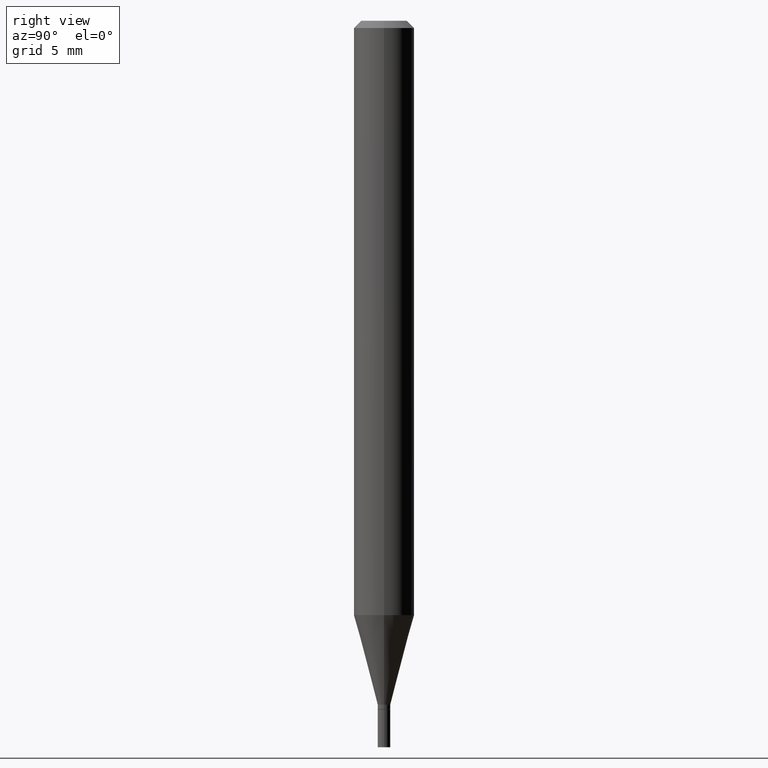
[diagram: clean part render]
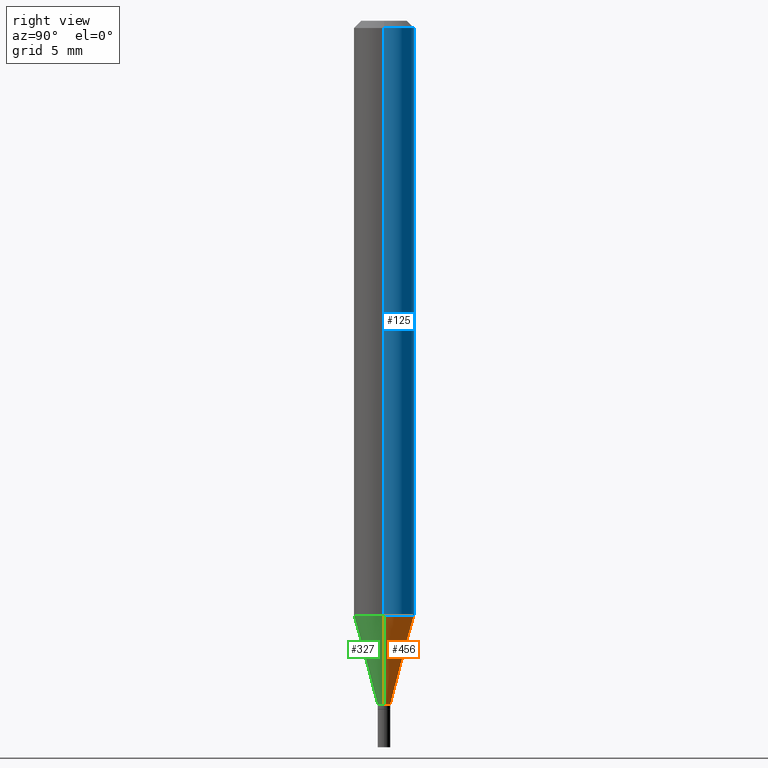
[diagram: same view with three faces highlighted in distinct colors, each labeled with its STEP entity id]
A machine part, right view with three faces highlighted in distinct colors.
Their STEP definitions:

[orange] entity #456 — the highlighted conical surface has half-angle 15 deg.
#23 = DIRECTION ( 'NONE',  ( -2.445468806185136597E-29, 3.491481338843145583E-15, 1.000000000000000000 ) ) ;
#31 = CARTESIAN_POINT ( 'NONE',  ( 3.453001954333413314E-29, -4.929971650446521716E-15, -1.412000000000000144 ) ) ;
#33 = DIRECTION ( 'NONE',  ( -2.445468806185136597E-29, 3.491481338843145583E-15, 1.000000000000000000 ) ) ;
#52 = DIRECTION ( 'NONE',  ( 1.000000000000000000, -6.982962677686299843E-15, 0.000000000000000000 ) ) ;
#54 = DIRECTION ( 'NONE',  ( -2.445468806185136597E-29, 3.491481338843145583E-15, 1.000000000000000000 ) ) ;
#62 = VERTEX_POINT ( 'NONE', #177 ) ;
#93 = ORIENTED_EDGE ( 'NONE', *, *, #282, .T. ) ;
#114 = CARTESIAN_POINT ( 'NONE',  ( -0.01299999999999992134, -4.837601094797709398E-15, -1.412000000000000144 ) ) ;
#117 = DIRECTION ( 'NONE',  ( 0.2588190451025207950, 1.565188264969625912E-15, 0.9659258262890682012 ) ) ;
#136 = EDGE_LOOP ( 'NONE', ( #466, #93, #271, #170 ) ) ;
#145 = CIRCLE ( 'NONE', #318, 0.01299999999999992134 ) ;
#153 = CARTESIAN_POINT ( 'NONE',  ( -0.01299999999999992134, -4.339239720378613725E-15, -1.412000000000000144 ) ) ;
#154 = EDGE_CURVE ( 'NONE', #62, #201, #402, .T. ) ;
#160 = DIRECTION ( 'NONE',  ( 1.000000000000000000, -6.982962677686270655E-15, 0.000000000000000000 ) ) ;
#163 = VERTEX_POINT ( 'NONE', #153 ) ;
#170 = ORIENTED_EDGE ( 'NONE', *, *, #154, .F. ) ;
#177 = CARTESIAN_POINT ( 'NONE',  ( 0.01299999999999992134, -5.020750165256443057E-15, -1.412000000000000144 ) ) ;
#178 = VECTOR ( 'NONE', #252, 39.37007874015748854 ) ;
#201 = VERTEX_POINT ( 'NONE', #286 ) ;
#216 = CARTESIAN_POINT ( 'NONE',  ( 0.01299999999999992134, -5.020750165256443057E-15, -1.412000000000000144 ) ) ;
#219 = LINE ( 'NONE', #114, #178 ) ;
#241 = DIRECTION ( 'NONE',  ( 1.000000000000000000, -6.982962677686299843E-15, 0.000000000000000000 ) ) ;
#252 = DIRECTION ( 'NONE',  ( -0.2588190451025207950, 5.211531920934546309E-15, 0.9659258262890682012 ) ) ;
#264 = CIRCLE ( 'NONE', #425, 0.06250000000000000000 ) ;
#271 = ORIENTED_EDGE ( 'NONE', *, *, #333, .F. ) ;
#282 = EDGE_CURVE ( 'NONE', #163, #346, #219, .T. ) ;
#286 = CARTESIAN_POINT ( 'NONE',  ( 0.06249999999999999306, -4.721402723164972337E-15, -1.227263485025340550 ) ) ;
#317 = VECTOR ( 'NONE', #117, 39.37007874015748854 ) ;
#318 = AXIS2_PLACEMENT_3D ( 'NONE', #331, #54, #52 ) ;
#331 = CARTESIAN_POINT ( 'NONE',  ( 3.453001954333413314E-29, -4.929971650446521716E-15, -1.412000000000000144 ) ) ;
#333 = EDGE_CURVE ( 'NONE', #201, #346, #264, .T. ) ;
#346 = VERTEX_POINT ( 'NONE', #376 ) ;
#355 = CONICAL_SURFACE ( 'NONE', #418, 0.01299999999999992134, 0.2617993877991495189 ) ;
#374 = FACE_OUTER_BOUND ( 'NONE', #136, .T. ) ;
#376 = CARTESIAN_POINT ( 'NONE',  ( -0.06249999999999999306, -3.840878345959517263E-15, -1.227263485025340550 ) ) ;
#402 = LINE ( 'NONE', #216, #317 ) ;
#404 = CARTESIAN_POINT ( 'NONE',  ( 3.001234569599529890E-29, -4.284967555809580668E-15, -1.227263485025340550 ) ) ;
#406 = EDGE_CURVE ( 'NONE', #62, #163, #145, .T. ) ;
#418 = AXIS2_PLACEMENT_3D ( 'NONE', #31, #33, #241 ) ;
#425 = AXIS2_PLACEMENT_3D ( 'NONE', #404, #23, #160 ) ;
#456 = ADVANCED_FACE ( 'NONE', ( #374 ), #355, .T. ) ;
#466 = ORIENTED_EDGE ( 'NONE', *, *, #406, .T. ) ;

[blue] entity #125 — the highlighted cylindrical surface (edge-blend (fillet) strip) has radius 1.5875 mm, axis along (-0, 0, 1).
#13 = DIRECTION ( 'NONE',  ( -2.445468806185136877E-29, 3.491481338843145188E-15, 1.000000000000000000 ) ) ;
#23 = DIRECTION ( 'NONE',  ( -2.445468806185136597E-29, 3.491481338843145583E-15, 1.000000000000000000 ) ) ;
#32 = CARTESIAN_POINT ( 'NONE',  ( 0.06250000000000000000, -4.364351673553916694E-16, 3.047610484872459871E-30 ) ) ;
#36 = AXIS2_PLACEMENT_3D ( 'NONE', #155, #257, #326 ) ;
#45 = VECTOR ( 'NONE', #386, 39.37007874015748143 ) ;
#49 = FACE_OUTER_BOUND ( 'NONE', #354, .T. ) ;
#55 = EDGE_CURVE ( 'NONE', #201, #75, #383, .T. ) ;
#63 = EDGE_CURVE ( 'NONE', #75, #87, #207, .T. ) ;
#75 = VERTEX_POINT ( 'NONE', #283 ) ;
#81 = AXIS2_PLACEMENT_3D ( 'NONE', #206, #458, #391 ) ;
#87 = VERTEX_POINT ( 'NONE', #392 ) ;
#125 = ADVANCED_FACE ( 'NONE', ( #49 ), #223, .T. ) ;
#141 = ORIENTED_EDGE ( 'NONE', *, *, #55, .F. ) ;
#155 = CARTESIAN_POINT ( 'NONE',  ( 0.000000000000000000, 0.000000000000000000, 0.000000000000000000 ) ) ;
#160 = DIRECTION ( 'NONE',  ( 1.000000000000000000, -6.982962677686270655E-15, 0.000000000000000000 ) ) ;
#164 = VECTOR ( 'NONE', #13, 39.37007874015748143 ) ;
#192 = CARTESIAN_POINT ( 'NONE',  ( -0.06250000000000000000, 4.440892098500626162E-16, -3.074334431409316114E-30 ) ) ;
#201 = VERTEX_POINT ( 'NONE', #286 ) ;
#206 = CARTESIAN_POINT ( 'NONE',  ( 3.668203209277705088E-31, -5.237222008264718399E-17, -0.01499999999999999944 ) ) ;
#207 = CIRCLE ( 'NONE', #81, 0.06250000000000000000 ) ;
#223 = CYLINDRICAL_SURFACE ( 'NONE', #36, 0.06250000000000000000 ) ;
#257 = DIRECTION ( 'NONE',  ( -2.445468806185136597E-29, 3.491481338843145583E-15, 1.000000000000000000 ) ) ;
#264 = CIRCLE ( 'NONE', #425, 0.06250000000000000000 ) ;
#283 = CARTESIAN_POINT ( 'NONE',  ( 0.06250000000000000000, -4.888073874380388472E-16, -0.01499999999999999944 ) ) ;
#286 = CARTESIAN_POINT ( 'NONE',  ( 0.06249999999999999306, -4.721402723164972337E-15, -1.227263485025340550 ) ) ;
#298 = LINE ( 'NONE', #192, #164 ) ;
#321 = EDGE_CURVE ( 'NONE', #346, #87, #298, .T. ) ;
#326 = DIRECTION ( 'NONE',  ( 1.000000000000000000, -6.982962677686266711E-15, 4.876176775795935793E-29 ) ) ;
#333 = EDGE_CURVE ( 'NONE', #201, #346, #264, .T. ) ;
#346 = VERTEX_POINT ( 'NONE', #376 ) ;
#354 = EDGE_LOOP ( 'NONE', ( #451, #446, #419, #141 ) ) ;
#376 = CARTESIAN_POINT ( 'NONE',  ( -0.06249999999999999306, -3.840878345959517263E-15, -1.227263485025340550 ) ) ;
#383 = LINE ( 'NONE', #32, #45 ) ;
#386 = DIRECTION ( 'NONE',  ( -2.445468806185136877E-29, 3.491481338843145188E-15, 1.000000000000000000 ) ) ;
#391 = DIRECTION ( 'NONE',  ( 1.000000000000000000, -6.982962677686266711E-15, 0.000000000000000000 ) ) ;
#392 = CARTESIAN_POINT ( 'NONE',  ( -0.06250000000000000000, -1.724580678096051257E-15, -0.01499999999999999944 ) ) ;
#404 = CARTESIAN_POINT ( 'NONE',  ( 3.001234569599529890E-29, -4.284967555809580668E-15, -1.227263485025340550 ) ) ;
#419 = ORIENTED_EDGE ( 'NONE', *, *, #63, .F. ) ;
#425 = AXIS2_PLACEMENT_3D ( 'NONE', #404, #23, #160 ) ;
#446 = ORIENTED_EDGE ( 'NONE', *, *, #321, .T. ) ;
#451 = ORIENTED_EDGE ( 'NONE', *, *, #333, .T. ) ;
#458 = DIRECTION ( 'NONE',  ( -2.445468806185136597E-29, 3.491481338843145583E-15, 1.000000000000000000 ) ) ;

[green] entity #327 — the highlighted conical surface has half-angle 15 deg.
#56 = ORIENTED_EDGE ( 'NONE', *, *, #282, .F. ) ;
#57 = DIRECTION ( 'NONE',  ( -2.445468806185136597E-29, 3.491481338843145583E-15, 1.000000000000000000 ) ) ;
#62 = VERTEX_POINT ( 'NONE', #177 ) ;
#82 = AXIS2_PLACEMENT_3D ( 'NONE', #132, #261, #408 ) ;
#103 = ORIENTED_EDGE ( 'NONE', *, *, #323, .T. ) ;
#114 = CARTESIAN_POINT ( 'NONE',  ( -0.01299999999999992134, -4.837601094797709398E-15, -1.412000000000000144 ) ) ;
#117 = DIRECTION ( 'NONE',  ( 0.2588190451025207950, 1.565188264969625912E-15, 0.9659258262890682012 ) ) ;
#121 = CIRCLE ( 'NONE', #82, 0.06250000000000000000 ) ;
#132 = CARTESIAN_POINT ( 'NONE',  ( 3.001234569599529890E-29, -4.284967555809580668E-15, -1.227263485025340550 ) ) ;
#153 = CARTESIAN_POINT ( 'NONE',  ( -0.01299999999999992134, -4.339239720378613725E-15, -1.412000000000000144 ) ) ;
#154 = EDGE_CURVE ( 'NONE', #62, #201, #402, .T. ) ;
#161 = ORIENTED_EDGE ( 'NONE', *, *, #421, .F. ) ;
#162 = CARTESIAN_POINT ( 'NONE',  ( 3.453001954333413314E-29, -4.929971650446521716E-15, -1.412000000000000144 ) ) ;
#163 = VERTEX_POINT ( 'NONE', #153 ) ;
#177 = CARTESIAN_POINT ( 'NONE',  ( 0.01299999999999992134, -5.020750165256443057E-15, -1.412000000000000144 ) ) ;
#178 = VECTOR ( 'NONE', #252, 39.37007874015748854 ) ;
#191 = DIRECTION ( 'NONE',  ( -2.445468806185136597E-29, 3.491481338843145583E-15, 1.000000000000000000 ) ) ;
#201 = VERTEX_POINT ( 'NONE', #286 ) ;
#216 = CARTESIAN_POINT ( 'NONE',  ( 0.01299999999999992134, -5.020750165256443057E-15, -1.412000000000000144 ) ) ;
#219 = LINE ( 'NONE', #114, #178 ) ;
#222 = AXIS2_PLACEMENT_3D ( 'NONE', #162, #191, #370 ) ;
#227 = DIRECTION ( 'NONE',  ( 1.000000000000000000, -6.982962677686299843E-15, 0.000000000000000000 ) ) ;
#237 = CARTESIAN_POINT ( 'NONE',  ( 3.453001954333413314E-29, -4.929971650446521716E-15, -1.412000000000000144 ) ) ;
#251 = ORIENTED_EDGE ( 'NONE', *, *, #154, .T. ) ;
#252 = DIRECTION ( 'NONE',  ( -0.2588190451025207950, 5.211531920934546309E-15, 0.9659258262890682012 ) ) ;
#256 = AXIS2_PLACEMENT_3D ( 'NONE', #237, #57, #227 ) ;
#261 = DIRECTION ( 'NONE',  ( -2.445468806185136597E-29, 3.491481338843145583E-15, 1.000000000000000000 ) ) ;
#267 = EDGE_LOOP ( 'NONE', ( #56, #103, #251, #161 ) ) ;
#279 = CONICAL_SURFACE ( 'NONE', #256, 0.01299999999999992134, 0.2617993877991495189 ) ;
#282 = EDGE_CURVE ( 'NONE', #163, #346, #219, .T. ) ;
#286 = CARTESIAN_POINT ( 'NONE',  ( 0.06249999999999999306, -4.721402723164972337E-15, -1.227263485025340550 ) ) ;
#317 = VECTOR ( 'NONE', #117, 39.37007874015748854 ) ;
#323 = EDGE_CURVE ( 'NONE', #163, #62, #395, .T. ) ;
#327 = ADVANCED_FACE ( 'NONE', ( #332 ), #279, .T. ) ;
#332 = FACE_OUTER_BOUND ( 'NONE', #267, .T. ) ;
#346 = VERTEX_POINT ( 'NONE', #376 ) ;
#370 = DIRECTION ( 'NONE',  ( 1.000000000000000000, -6.982962677686299843E-15, 0.000000000000000000 ) ) ;
#376 = CARTESIAN_POINT ( 'NONE',  ( -0.06249999999999999306, -3.840878345959517263E-15, -1.227263485025340550 ) ) ;
#395 = CIRCLE ( 'NONE', #222, 0.01299999999999992134 ) ;
#402 = LINE ( 'NONE', #216, #317 ) ;
#408 = DIRECTION ( 'NONE',  ( 1.000000000000000000, -6.982962677686270655E-15, 0.000000000000000000 ) ) ;
#421 = EDGE_CURVE ( 'NONE', #346, #201, #121, .T. ) ;